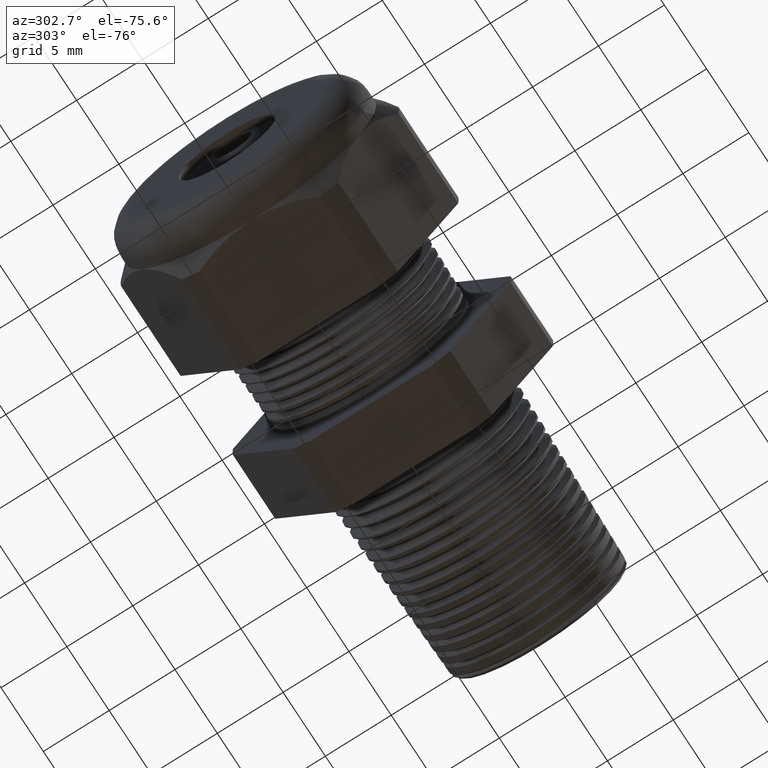
[diagram: clean part render]
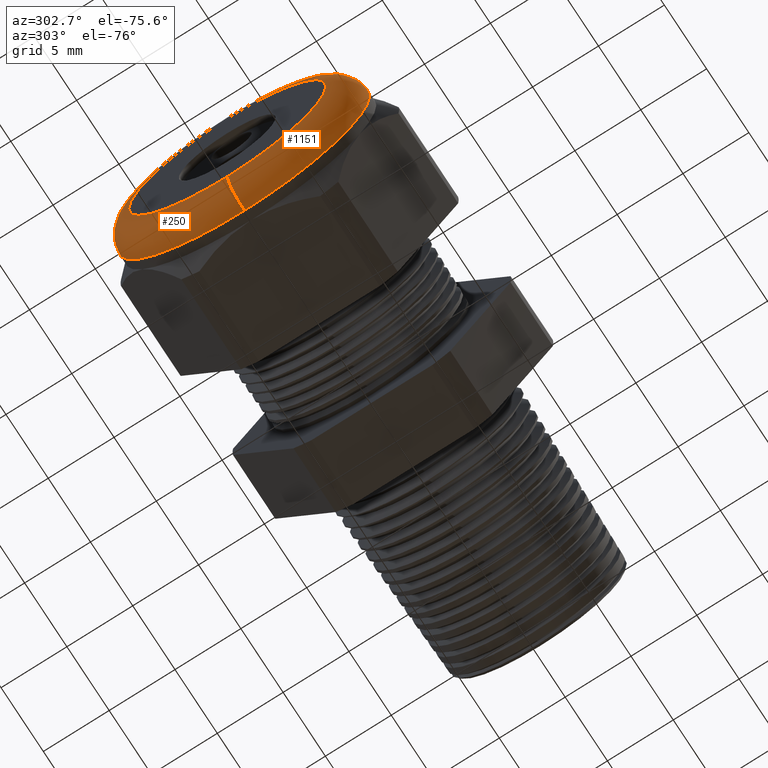
[diagram: same view with one multi-face feature highlighted, each face labeled with its STEP entity id]
A machine part, auxiliary view. The highlighted faces form ONE feature: a constant-radius fillet chain: 2 tangent blend faces with common blend radius 2.032 mm. The faces share edges in the B-rep.
Their STEP definitions:
[1] entity #250 (Torus):
#250 = ADVANCED_FACE ( 'NONE', ( #2209 ), #2208, .T. ) ;
#251 = EDGE_LOOP ( 'NONE', ( #304, #308, #311, #314 ) ) ;
#304 = ORIENTED_EDGE ( 'NONE', *, *, #305, .F. ) ;
#305 = EDGE_CURVE ( 'NONE', #306, #307, #2293, .T. ) ;
#306 = VERTEX_POINT ( 'NONE', #2288 ) ;
#307 = VERTEX_POINT ( 'NONE', #2287 ) ;
#308 = ORIENTED_EDGE ( 'NONE', *, *, #309, .T. ) ;
#309 = EDGE_CURVE ( 'NONE', #306, #310, #2286, .T. ) ;
#310 = VERTEX_POINT ( 'NONE', #2281 ) ;
#311 = ORIENTED_EDGE ( 'NONE', *, *, #312, .F. ) ;
#312 = EDGE_CURVE ( 'NONE', #313, #310, #2344, .T. ) ;
#313 = VERTEX_POINT ( 'NONE', #2339 ) ;
#314 = ORIENTED_EDGE ( 'NONE', *, *, #315, .F. ) ;
#315 = EDGE_CURVE ( 'NONE', #307, #313, #2337, .T. ) ;
#2205 = DIRECTION ( 'NONE',  ( 0.0000000000000000000, 0.0000000000000000000, 1.000000000000000000 ) ) ;
#2206 = DIRECTION ( 'NONE',  ( -1.000000000000000000, 0.0000000000000000000, 0.0000000000000000000 ) ) ;
#2207 = AXIS2_PLACEMENT_3D ( 'NONE', #2214, #2206, #2205 ) ;
#2208 = TOROIDAL_SURFACE ( 'NONE', #2207, 0.2950000000000001000, 0.08000000000000000200 ) ;
#2209 = FACE_OUTER_BOUND ( 'NONE', #251, .T. ) ;
#2214 = CARTESIAN_POINT ( 'NONE',  ( -1.100000000000000100, 0.0000000000000000000, 0.0000000000000000000 ) ) ;
#2281 = CARTESIAN_POINT ( 'NONE',  ( -1.179999999999999900, 4.102566777143634000E-017, -0.2950000000000001000 ) ) ;
#2282 = DIRECTION ( 'NONE',  ( 0.0000000000000000000, -1.224646799147353500E-016, 1.000000000000000000 ) ) ;
#2283 = DIRECTION ( 'NONE',  ( 0.0000000000000000000, 1.000000000000000000, 1.224646799147353200E-016 ) ) ;
#2284 = CARTESIAN_POINT ( 'NONE',  ( -1.100000000000000100, 3.612708057484693200E-017, -0.2950000000000001000 ) ) ;
#2285 = AXIS2_PLACEMENT_3D ( 'NONE', #2284, #2283, #2282 ) ;
#2286 = CIRCLE ( 'NONE', #2285, 0.08000000000000000200 ) ;
#2287 = CARTESIAN_POINT ( 'NONE',  ( -1.100000000000000100, 4.592425496802576100E-017, 0.3750000000000001100 ) ) ;
#2288 = CARTESIAN_POINT ( 'NONE',  ( -1.100000000000000100, 0.0000000000000000000, -0.3750000000000001100 ) ) ;
#2289 = DIRECTION ( 'NONE',  ( 0.0000000000000000000, 0.0000000000000000000, 1.000000000000000000 ) ) ;
#2290 = DIRECTION ( 'NONE',  ( 1.000000000000000000, 0.0000000000000000000, 0.0000000000000000000 ) ) ;
#2291 = CARTESIAN_POINT ( 'NONE',  ( -1.100000000000000100, 0.0000000000000000000, 0.0000000000000000000 ) ) ;
#2292 = AXIS2_PLACEMENT_3D ( 'NONE', #2291, #2290, #2289 ) ;
#2293 = CIRCLE ( 'NONE', #2292, 0.3750000000000001100 ) ;
#2333 = DIRECTION ( 'NONE',  ( 0.0000000000000000000, 0.0000000000000000000, -1.000000000000000000 ) ) ;
#2334 = DIRECTION ( 'NONE',  ( 0.0000000000000000000, -1.000000000000000000, 0.0000000000000000000 ) ) ;
#2335 = CARTESIAN_POINT ( 'NONE',  ( -1.100000000000000100, 0.0000000000000000000, 0.2950000000000001000 ) ) ;
#2336 = AXIS2_PLACEMENT_3D ( 'NONE', #2335, #2334, #2333 ) ;
#2337 = CIRCLE ( 'NONE', #2336, 0.08000000000000000200 ) ;
#2339 = CARTESIAN_POINT ( 'NONE',  ( -1.179999999999999900, 0.0000000000000000000, 0.2950000000000001000 ) ) ;
#2340 = DIRECTION ( 'NONE',  ( 0.0000000000000000000, 0.0000000000000000000, 1.000000000000000000 ) ) ;
#2341 = DIRECTION ( 'NONE',  ( -1.000000000000000000, 0.0000000000000000000, 0.0000000000000000000 ) ) ;
#2342 = CARTESIAN_POINT ( 'NONE',  ( -1.179999999999999900, 0.0000000000000000000, 0.0000000000000000000 ) ) ;
#2343 = AXIS2_PLACEMENT_3D ( 'NONE', #2342, #2341, #2340 ) ;
#2344 = CIRCLE ( 'NONE', #2343, 0.2950000000000001000 ) ;
[2] entity #1151 (Torus):
#306 = VERTEX_POINT ( 'NONE', #2288 ) ;
#307 = VERTEX_POINT ( 'NONE', #2287 ) ;
#309 = EDGE_CURVE ( 'NONE', #306, #310, #2286, .T. ) ;
#310 = VERTEX_POINT ( 'NONE', #2281 ) ;
#313 = VERTEX_POINT ( 'NONE', #2339 ) ;
#315 = EDGE_CURVE ( 'NONE', #307, #313, #2337, .T. ) ;
#936 = EDGE_CURVE ( 'NONE', #307, #306, #3538, .T. ) ;
#956 = EDGE_CURVE ( 'NONE', #310, #313, #3617, .T. ) ;
#1151 = ADVANCED_FACE ( 'NONE', ( #3846 ), #3845, .T. ) ;
#1152 = EDGE_LOOP ( 'NONE', ( #1153, #1154, #1155, #1156 ) ) ;
#1153 = ORIENTED_EDGE ( 'NONE', *, *, #309, .F. ) ;
#1154 = ORIENTED_EDGE ( 'NONE', *, *, #936, .F. ) ;
#1155 = ORIENTED_EDGE ( 'NONE', *, *, #315, .T. ) ;
#1156 = ORIENTED_EDGE ( 'NONE', *, *, #956, .F. ) ;
#2281 = CARTESIAN_POINT ( 'NONE',  ( -1.179999999999999900, 4.102566777143634000E-017, -0.2950000000000001000 ) ) ;
#2282 = DIRECTION ( 'NONE',  ( 0.0000000000000000000, -1.224646799147353500E-016, 1.000000000000000000 ) ) ;
#2283 = DIRECTION ( 'NONE',  ( 0.0000000000000000000, 1.000000000000000000, 1.224646799147353200E-016 ) ) ;
#2284 = CARTESIAN_POINT ( 'NONE',  ( -1.100000000000000100, 3.612708057484693200E-017, -0.2950000000000001000 ) ) ;
#2285 = AXIS2_PLACEMENT_3D ( 'NONE', #2284, #2283, #2282 ) ;
#2286 = CIRCLE ( 'NONE', #2285, 0.08000000000000000200 ) ;
#2287 = CARTESIAN_POINT ( 'NONE',  ( -1.100000000000000100, 4.592425496802576100E-017, 0.3750000000000001100 ) ) ;
#2288 = CARTESIAN_POINT ( 'NONE',  ( -1.100000000000000100, 0.0000000000000000000, -0.3750000000000001100 ) ) ;
#2333 = DIRECTION ( 'NONE',  ( 0.0000000000000000000, 0.0000000000000000000, -1.000000000000000000 ) ) ;
#2334 = DIRECTION ( 'NONE',  ( 0.0000000000000000000, -1.000000000000000000, 0.0000000000000000000 ) ) ;
#2335 = CARTESIAN_POINT ( 'NONE',  ( -1.100000000000000100, 0.0000000000000000000, 0.2950000000000001000 ) ) ;
#2336 = AXIS2_PLACEMENT_3D ( 'NONE', #2335, #2334, #2333 ) ;
#2337 = CIRCLE ( 'NONE', #2336, 0.08000000000000000200 ) ;
#2339 = CARTESIAN_POINT ( 'NONE',  ( -1.179999999999999900, 0.0000000000000000000, 0.2950000000000001000 ) ) ;
#3530 = DIRECTION ( 'NONE',  ( 0.0000000000000000000, 0.0000000000000000000, 1.000000000000000000 ) ) ;
#3531 = DIRECTION ( 'NONE',  ( 1.000000000000000000, 0.0000000000000000000, 0.0000000000000000000 ) ) ;
#3532 = CARTESIAN_POINT ( 'NONE',  ( -1.100000000000000100, 0.0000000000000000000, 0.0000000000000000000 ) ) ;
#3533 = AXIS2_PLACEMENT_3D ( 'NONE', #3532, #3531, #3530 ) ;
#3538 = CIRCLE ( 'NONE', #3533, 0.3750000000000001100 ) ;
#3557 = CARTESIAN_POINT ( 'NONE',  ( -1.179999999999999900, 0.0000000000000000000, 0.0000000000000000000 ) ) ;
#3614 = DIRECTION ( 'NONE',  ( 0.0000000000000000000, 0.0000000000000000000, 1.000000000000000000 ) ) ;
#3615 = DIRECTION ( 'NONE',  ( -1.000000000000000000, 0.0000000000000000000, 0.0000000000000000000 ) ) ;
#3616 = AXIS2_PLACEMENT_3D ( 'NONE', #3557, #3615, #3614 ) ;
#3617 = CIRCLE ( 'NONE', #3616, 0.2950000000000001000 ) ;
#3844 = AXIS2_PLACEMENT_3D ( 'NONE', #3850, #3910, #3909 ) ;
#3845 = TOROIDAL_SURFACE ( 'NONE', #3844, 0.2950000000000001000, 0.08000000000000000200 ) ;
#3846 = FACE_OUTER_BOUND ( 'NONE', #1152, .T. ) ;
#3850 = CARTESIAN_POINT ( 'NONE',  ( -1.100000000000000100, 0.0000000000000000000, 0.0000000000000000000 ) ) ;
#3909 = DIRECTION ( 'NONE',  ( 0.0000000000000000000, 0.0000000000000000000, 1.000000000000000000 ) ) ;
#3910 = DIRECTION ( 'NONE',  ( -1.000000000000000000, 0.0000000000000000000, 0.0000000000000000000 ) ) ;